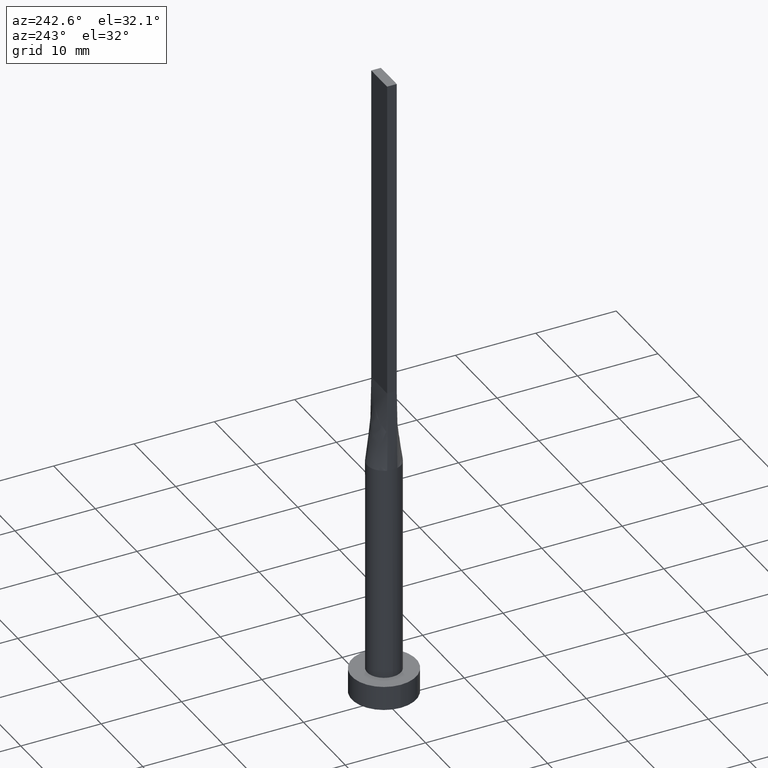
[diagram: clean part render]
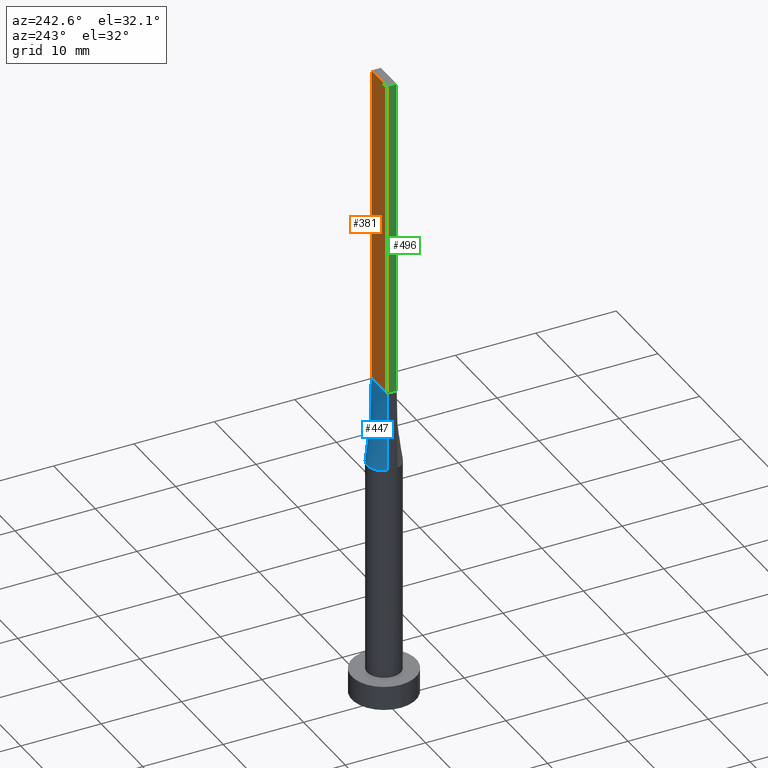
[diagram: same view with three faces highlighted in distinct colors, each labeled with its STEP entity id]
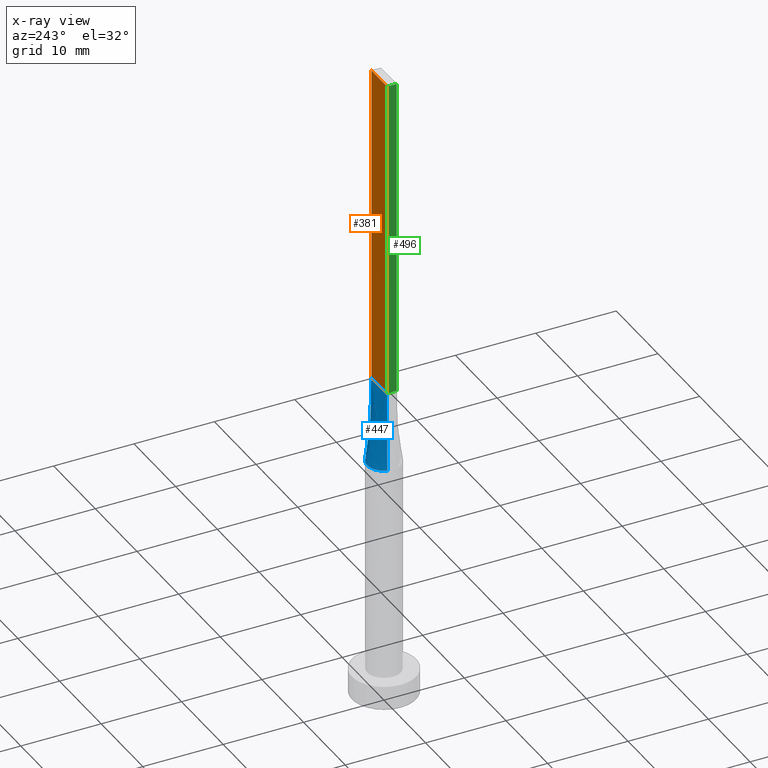
[diagram: x-ray of the same camera — body ghosted, the three highlighted faces saturated]
A machine part, auxiliary view with three faces highlighted in distinct colors.
The next image is the same camera in x-ray (body ghosted, the three faces saturated) — at least one of them is partly hidden behind the body in this view.
Their STEP definitions:

[orange] entity #381 — the highlighted planar face has unit normal (0, -1, 0).
#8 = DIRECTION ( 'NONE',  ( -1.000000000000000000, 0.000000000000000000, 0.000000000000000000 ) ) ;
#21 = EDGE_CURVE ( 'NONE', #109, #374, #120, .T. ) ;
#58 = FACE_OUTER_BOUND ( 'NONE', #136, .T. ) ;
#70 = LINE ( 'NONE', #250, #444 ) ;
#71 = VECTOR ( 'NONE', #544, 1000.000000000000000 ) ;
#86 = CARTESIAN_POINT ( 'NONE',  ( -1.899999999999999689, 0.6000000000000001998, 80.00000000000000000 ) ) ;
#102 = CARTESIAN_POINT ( 'NONE',  ( 1.899999999999999689, 0.6000000000000001998, 40.00000000000000000 ) ) ;
#108 = VECTOR ( 'NONE', #8, 1000.000000000000000 ) ;
#109 = VERTEX_POINT ( 'NONE', #448 ) ;
#120 = LINE ( 'NONE', #485, #299 ) ;
#136 = EDGE_LOOP ( 'NONE', ( #527, #354, #368, #442 ) ) ;
#171 = EDGE_CURVE ( 'NONE', #374, #328, #70, .T. ) ;
#179 = AXIS2_PLACEMENT_3D ( 'NONE', #240, #339, #189 ) ;
#189 = DIRECTION ( 'NONE',  ( 0.000000000000000000, -0.000000000000000000, -1.000000000000000000 ) ) ;
#221 = LINE ( 'NONE', #86, #71 ) ;
#231 = LINE ( 'NONE', #484, #108 ) ;
#240 = CARTESIAN_POINT ( 'NONE',  ( 1.899999999999999689, 0.6000000000000001998, 80.00000000000000000 ) ) ;
#250 = CARTESIAN_POINT ( 'NONE',  ( -1.899999999999999689, 0.6000000000000001998, 40.00000000000000000 ) ) ;
#258 = CARTESIAN_POINT ( 'NONE',  ( -1.899999999999999689, 0.6000000000000001998, 80.00000000000000000 ) ) ;
#284 = EDGE_CURVE ( 'NONE', #445, #328, #221, .T. ) ;
#299 = VECTOR ( 'NONE', #307, 1000.000000000000000 ) ;
#307 = DIRECTION ( 'NONE',  ( -0.000000000000000000, -0.000000000000000000, -1.000000000000000000 ) ) ;
#328 = VERTEX_POINT ( 'NONE', #395 ) ;
#339 = DIRECTION ( 'NONE',  ( 0.000000000000000000, -1.000000000000000000, 0.000000000000000000 ) ) ;
#345 = EDGE_CURVE ( 'NONE', #109, #445, #231, .T. ) ;
#354 = ORIENTED_EDGE ( 'NONE', *, *, #284, .F. ) ;
#368 = ORIENTED_EDGE ( 'NONE', *, *, #345, .F. ) ;
#374 = VERTEX_POINT ( 'NONE', #102 ) ;
#381 = ADVANCED_FACE ( 'NONE', ( #58 ), #407, .F. ) ;
#395 = CARTESIAN_POINT ( 'NONE',  ( -1.899999999999999689, 0.6000000000000001998, 40.00000000000000000 ) ) ;
#407 = PLANE ( 'NONE',  #179 ) ;
#418 = DIRECTION ( 'NONE',  ( -1.000000000000000000, -0.000000000000000000, -0.000000000000000000 ) ) ;
#442 = ORIENTED_EDGE ( 'NONE', *, *, #21, .T. ) ;
#444 = VECTOR ( 'NONE', #418, 1000.000000000000000 ) ;
#445 = VERTEX_POINT ( 'NONE', #258 ) ;
#448 = CARTESIAN_POINT ( 'NONE',  ( 1.899999999999999689, 0.6000000000000001998, 80.00000000000000000 ) ) ;
#484 = CARTESIAN_POINT ( 'NONE',  ( 1.899999999999999689, 0.6000000000000001998, 80.00000000000000000 ) ) ;
#485 = CARTESIAN_POINT ( 'NONE',  ( 1.899999999999999689, 0.6000000000000001998, 80.00000000000000000 ) ) ;
#527 = ORIENTED_EDGE ( 'NONE', *, *, #171, .T. ) ;
#544 = DIRECTION ( 'NONE',  ( -0.000000000000000000, -0.000000000000000000, -1.000000000000000000 ) ) ;

[blue] entity #447 — the highlighted face is a freeform B-spline surface patch.
#1 = CARTESIAN_POINT ( 'NONE',  ( 1.951261798390848901, 0.6161879363339524129, 35.00000000000000000 ) ) ;
#2 = CARTESIAN_POINT ( 'NONE',  ( -1.741666666666666696, 0.6000000000000000888, 39.99999999999999289 ) ) ;
#19 = ORIENTED_EDGE ( 'NONE', *, *, #204, .T. ) ;
#22 = CARTESIAN_POINT ( 'NONE',  ( -0.1583333333333350745, 0.6000000000000000888, 39.99999999999999289 ) ) ;
#25 = CARTESIAN_POINT ( 'NONE',  ( -1.667357759214464830, 1.291791096182927534, 30.00000000000000355 ) ) ;
#29 = CARTESIAN_POINT ( 'NONE',  ( 0.9765948449220478444, 1.875594675604967065, 29.99999999999999645 ) ) ;
#31 = CARTESIAN_POINT ( 'NONE',  ( 1.108333333333332504, 0.6000000000000000888, 39.99999999999999289 ) ) ;
#35 = CARTESIAN_POINT ( 'NONE',  ( 1.266666666666665941, 0.6000000000000000888, 39.99999999999999289 ) ) ;
#63 = CARTESIAN_POINT ( 'NONE',  ( -1.951261798390848901, 0.6161879363339521909, 35.00000000000000000 ) ) ;
#70 = LINE ( 'NONE', #250, #444 ) ;
#74 = CARTESIAN_POINT ( 'NONE',  ( -1.529462611013499451, 1.456669187245239527, 29.99999999999999645 ) ) ;
#77 = CARTESIAN_POINT ( 'NONE',  ( 1.529462611013499451, 1.456669187245239527, 29.99999999999999645 ) ) ;
#78 = CARTESIAN_POINT ( 'NONE',  ( -2.002622288503867587, 0.6324075186587619912, 30.00000000000000000 ) ) ;
#92 = ORIENTED_EDGE ( 'NONE', *, *, #171, .F. ) ;
#93 = CARTESIAN_POINT ( 'NONE',  ( -2.002523596781697890, 0.6323758726679044040, 30.00000000000000000 ) ) ;
#94 = CARTESIAN_POINT ( 'NONE',  ( -0.5124799074986362557, 2.051574327850739454, 30.00000000000000711 ) ) ;
#101 = EDGE_CURVE ( 'NONE', #491, #374, #498, .T. ) ;
#102 = CARTESIAN_POINT ( 'NONE',  ( 1.899999999999999689, 0.6000000000000001998, 40.00000000000000000 ) ) ;
#114 = CARTESIAN_POINT ( 'NONE',  ( 1.952271707612931895, 0.7915068550356627597, 30.00000000000000355 ) ) ;
#115 = CARTESIAN_POINT ( 'NONE',  ( 1.899999999999999689, 0.6000000000000001998, 40.00000000000000000 ) ) ;
#129 = CARTESIAN_POINT ( 'NONE',  ( 1.184262492297964098, 1.748903470433445628, 29.99999999999999289 ) ) ;
#134 = CARTESIAN_POINT ( 'NONE',  ( -1.184262492297963876, 1.748903470433446294, 30.00000000000000000 ) ) ;
#145 = LINE ( 'NONE', #63, #249 ) ;
#157 = CARTESIAN_POINT ( 'NONE',  ( -1.878511276496549032, 0.9591670956957809580, 30.00000000000001066 ) ) ;
#158 = CARTESIAN_POINT ( 'NONE',  ( 1.667357759214464608, 1.291791096182927090, 30.00000000000001066 ) ) ;
#163 = CARTESIAN_POINT ( 'NONE',  ( 0.6333333333333320825, 0.6000000000000000888, 39.99999999999999289 ) ) ;
#168 = FACE_OUTER_BOUND ( 'NONE', #363, .T. ) ;
#171 = EDGE_CURVE ( 'NONE', #374, #328, #70, .T. ) ;
#201 = CARTESIAN_POINT ( 'NONE',  ( -0.5124799074986362557, 2.051574327850739454, 30.00000000000000711 ) ) ;
#204 = EDGE_CURVE ( 'NONE', #214, #328, #145, .T. ) ;
#205 = CARTESIAN_POINT ( 'NONE',  ( -1.266666666666667496, 0.6000000000000000888, 39.99999999999999289 ) ) ;
#214 = VERTEX_POINT ( 'NONE', #78 ) ;
#234 = CARTESIAN_POINT ( 'NONE',  ( 0.9765948449220478444, 1.875594675604967065, 29.99999999999999645 ) ) ;
#249 = VECTOR ( 'NONE', #414, 1000.000000000000114 ) ;
#250 = CARTESIAN_POINT ( 'NONE',  ( -1.899999999999999689, 0.6000000000000001998, 40.00000000000000000 ) ) ;
#253 = CARTESIAN_POINT ( 'NONE',  ( 0.7916666666666655194, 0.6000000000000000888, 39.99999999999999289 ) ) ;
#254 = CARTESIAN_POINT ( 'NONE',  ( 1.952271707612931895, 0.7915068550356627597, 30.00000000000000355 ) ) ;
#257 = EDGE_CURVE ( 'NONE', #491, #214, #462, .T. ) ;
#259 = VECTOR ( 'NONE', #325, 1000.000000000000114 ) ;
#266 = CARTESIAN_POINT ( 'NONE',  ( -1.667357759214464830, 1.291791096182927534, 30.00000000000000355 ) ) ;
#298 = CARTESIAN_POINT ( 'NONE',  ( -1.184262492297963876, 1.748903470433446294, 30.00000000000000000 ) ) ;
#300 = CARTESIAN_POINT ( 'NONE',  ( 2.002598039528881380, 0.6323997261616642884, 30.00000000000000000 ) ) ;
#301 = CARTESIAN_POINT ( 'NONE',  ( 1.667357759214464608, 1.291791096182927090, 30.00000000000001066 ) ) ;
#309 = CARTESIAN_POINT ( 'NONE',  ( 0.2565105576742081062, 2.100000000000000533, 30.00000000000001421 ) ) ;
#318 = CARTESIAN_POINT ( 'NONE',  ( -1.952271707612931895, 0.7915068550356629817, 30.00000000000000355 ) ) ;
#325 = DIRECTION ( 'NONE',  ( -0.01025176717979708711, -0.003237400162041179606, 0.9999422085850171449 ) ) ;
#328 = VERTEX_POINT ( 'NONE', #395 ) ;
#343 = CARTESIAN_POINT ( 'NONE',  ( -0.9765948449220482885, 1.875594675604967509, 30.00000000000001066 ) ) ;
#349 = CARTESIAN_POINT ( 'NONE',  ( 1.184262492297964098, 1.748903470433445628, 29.99999999999999289 ) ) ;
#352 = CARTESIAN_POINT ( 'NONE',  ( -1.583333333333333703, 0.6000000000000000888, 39.99999999999999289 ) ) ;
#353 = CARTESIAN_POINT ( 'NONE',  ( -2.002622288503867587, 0.6324075186587619912, 30.00000000000000000 ) ) ;
#360 = CARTESIAN_POINT ( 'NONE',  ( 0.5124799074986362557, 2.051574327850739454, 30.00000000000001421 ) ) ;
#363 = EDGE_LOOP ( 'NONE', ( #561, #19, #92, #580 ) ) ;
#373 = CARTESIAN_POINT ( 'NONE',  ( 2.002598039528881380, 0.6323997261616642884, 30.00000000000000000 ) ) ;
#374 = VERTEX_POINT ( 'NONE', #102 ) ;
#378 = CARTESIAN_POINT ( 'NONE',  ( -0.3166666666666682062, 0.6000000000000000888, 39.99999999999999289 ) ) ;
#382 = CARTESIAN_POINT ( 'NONE',  ( 0.3166666666666652086, 0.6000000000000000888, 39.99999999999999289 ) ) ;
#395 = CARTESIAN_POINT ( 'NONE',  ( -1.899999999999999689, 0.6000000000000001998, 40.00000000000000000 ) ) ;
#400 = CARTESIAN_POINT ( 'NONE',  ( 1.529462611013499451, 1.456669187245239527, 29.99999999999999645 ) ) ;
#403 = CARTESIAN_POINT ( 'NONE',  ( -1.878511276496549032, 0.9591670956957809580, 30.00000000000001066 ) ) ;
#414 = DIRECTION ( 'NONE',  ( 0.01025176717979708711, -0.003237400162041147514, 0.9999422085850171449 ) ) ;
#417 = CARTESIAN_POINT ( 'NONE',  ( -0.2565105576742073845, 2.100000000000000533, 30.00000000000001066 ) ) ;
#418 = DIRECTION ( 'NONE',  ( -1.000000000000000000, -0.000000000000000000, -0.000000000000000000 ) ) ;
#419 = CARTESIAN_POINT ( 'NONE',  ( -1.108333333333334281, 0.6000000000000000888, 39.99999999999999289 ) ) ;
#424 = CARTESIAN_POINT ( 'NONE',  ( 1.583333333333332815, 0.6000000000000001998, 40.00000000000000000 ) ) ;
#434 = CARTESIAN_POINT ( 'NONE',  ( 0.2565105576742081062, 2.100000000000000533, 30.00000000000001421 ) ) ;
#441 = CARTESIAN_POINT ( 'NONE',  ( -0.2565105576742073845, 2.100000000000000533, 30.00000000000001066 ) ) ;
#444 = VECTOR ( 'NONE', #418, 1000.000000000000000 ) ;
#447 = ADVANCED_FACE ( 'NONE', ( #168 ), #476, .T. ) ;
#462 = B_SPLINE_CURVE_WITH_KNOTS ( 'NONE', 3,
 ( #300, #254, #563, #158, #400, #129, #234, #360, #434, #441, #94, #497, #134, #542, #266, #403, #539, #353 ),
 .UNSPECIFIED., .F., .F.,
 ( 4, 2, 2, 2, 2, 2, 2, 2, 4 ),
 ( 0.000000000000000000, 0.1249999999999999167, 0.2499999999999998890, 0.3749999999999998335, 0.4999999999999998890, 0.6249999999999998890, 0.7499999999999998890, 0.8750000000000000000, 1.000000000000000000 ),
 .UNSPECIFIED. ) ;
#468 = CARTESIAN_POINT ( 'NONE',  ( -0.7916666666666677399, 0.6000000000000000888, 39.99999999999999289 ) ) ;
#476 = B_SPLINE_SURFACE_WITH_KNOTS ( 'NONE', 3, 1, ( 
 ( #525, #115 ),
 ( #114, #531 ),
 ( #521, #424 ),
 ( #301, #35 ),
 ( #77, #31 ),
 ( #349, #253 ),
 ( #29, #163 ),
 ( #571, #382 ),
 ( #309, #482 ),
 ( #417, #22 ),
 ( #201, #378 ),
 ( #343, #517 ),
 ( #298, #468 ),
 ( #74, #419 ),
 ( #25, #205 ),
 ( #157, #352 ),
 ( #318, #2 ),
 ( #93, #489 ) ),
 .UNSPECIFIED., .F., .F., .F.,
 ( 4, 2, 2, 2, 2, 2, 2, 2, 4 ),
 ( 2, 2 ),
 ( 0.000000000000000000, 0.1249999999999999167, 0.2499999999999998890, 0.3749999999999998335, 0.4999999999999998890, 0.6249999999999998890, 0.7499999999999998890, 0.8750000000000000000, 1.000000000000000000 ),
 ( 0.000000000000000000, 1.000000000000000000 ),
 .UNSPECIFIED. ) ;
#482 = CARTESIAN_POINT ( 'NONE',  ( 0.1583333333333316328, 0.6000000000000000888, 39.99999999999999289 ) ) ;
#489 = CARTESIAN_POINT ( 'NONE',  ( -1.899999999999999689, 0.6000000000000001998, 40.00000000000000000 ) ) ;
#491 = VERTEX_POINT ( 'NONE', #373 ) ;
#497 = CARTESIAN_POINT ( 'NONE',  ( -0.9765948449220482885, 1.875594675604967509, 30.00000000000001066 ) ) ;
#498 = LINE ( 'NONE', #1, #259 ) ;
#517 = CARTESIAN_POINT ( 'NONE',  ( -0.6333333333333345250, 0.6000000000000000888, 39.99999999999999289 ) ) ;
#521 = CARTESIAN_POINT ( 'NONE',  ( 1.878511276496548366, 0.9591670956957804028, 30.00000000000001066 ) ) ;
#525 = CARTESIAN_POINT ( 'NONE',  ( 2.002523596781697890, 0.6323758726679044040, 30.00000000000000000 ) ) ;
#531 = CARTESIAN_POINT ( 'NONE',  ( 1.741666666666666252, 0.6000000000000001998, 40.00000000000000000 ) ) ;
#539 = CARTESIAN_POINT ( 'NONE',  ( -1.952271707612931895, 0.7915068550356629817, 30.00000000000000355 ) ) ;
#542 = CARTESIAN_POINT ( 'NONE',  ( -1.529462611013499451, 1.456669187245239527, 29.99999999999999645 ) ) ;
#561 = ORIENTED_EDGE ( 'NONE', *, *, #257, .T. ) ;
#563 = CARTESIAN_POINT ( 'NONE',  ( 1.878511276496548366, 0.9591670956957804028, 30.00000000000001066 ) ) ;
#571 = CARTESIAN_POINT ( 'NONE',  ( 0.5124799074986362557, 2.051574327850739454, 30.00000000000001421 ) ) ;
#580 = ORIENTED_EDGE ( 'NONE', *, *, #101, .F. ) ;

[green] entity #496 — the highlighted planar face has unit normal (1, -0, 0).
#12 = CARTESIAN_POINT ( 'NONE',  ( -1.899999999999999911, -0.5999999999999995337, 80.00000000000000000 ) ) ;
#14 = FACE_OUTER_BOUND ( 'NONE', #278, .T. ) ;
#18 = DIRECTION ( 'NONE',  ( 1.807003620809174632E-16, 1.000000000000000000, 0.000000000000000000 ) ) ;
#57 = DIRECTION ( 'NONE',  ( -1.807003620809174632E-16, -1.000000000000000000, 0.000000000000000000 ) ) ;
#71 = VECTOR ( 'NONE', #544, 1000.000000000000000 ) ;
#86 = CARTESIAN_POINT ( 'NONE',  ( -1.899999999999999689, 0.6000000000000001998, 80.00000000000000000 ) ) ;
#100 = CARTESIAN_POINT ( 'NONE',  ( -1.899999999999999689, 0.6000000000000001998, 80.00000000000000000 ) ) ;
#137 = CARTESIAN_POINT ( 'NONE',  ( -1.899999999999999689, 0.6000000000000001998, 80.00000000000000000 ) ) ;
#142 = CARTESIAN_POINT ( 'NONE',  ( -1.899999999999999689, 0.6000000000000001998, 40.00000000000000000 ) ) ;
#151 = DIRECTION ( 'NONE',  ( -1.807003620809174632E-16, -1.000000000000000000, 0.000000000000000000 ) ) ;
#183 = LINE ( 'NONE', #137, #549 ) ;
#192 = DIRECTION ( 'NONE',  ( 1.000000000000000000, -1.807003620809174632E-16, 0.000000000000000000 ) ) ;
#198 = VERTEX_POINT ( 'NONE', #372 ) ;
#221 = LINE ( 'NONE', #86, #71 ) ;
#258 = CARTESIAN_POINT ( 'NONE',  ( -1.899999999999999689, 0.6000000000000001998, 80.00000000000000000 ) ) ;
#278 = EDGE_LOOP ( 'NONE', ( #388, #415, #543, #333 ) ) ;
#284 = EDGE_CURVE ( 'NONE', #445, #328, #221, .T. ) ;
#292 = CARTESIAN_POINT ( 'NONE',  ( -1.899999999999999911, -0.5999999999999995337, 80.00000000000000000 ) ) ;
#308 = VECTOR ( 'NONE', #57, 1000.000000000000000 ) ;
#328 = VERTEX_POINT ( 'NONE', #395 ) ;
#331 = LINE ( 'NONE', #292, #425 ) ;
#333 = ORIENTED_EDGE ( 'NONE', *, *, #284, .T. ) ;
#334 = PLANE ( 'NONE',  #479 ) ;
#351 = EDGE_CURVE ( 'NONE', #445, #394, #183, .T. ) ;
#359 = EDGE_CURVE ( 'NONE', #394, #198, #331, .T. ) ;
#372 = CARTESIAN_POINT ( 'NONE',  ( -1.899999999999999911, -0.5999999999999995337, 40.00000000000000000 ) ) ;
#388 = ORIENTED_EDGE ( 'NONE', *, *, #552, .T. ) ;
#394 = VERTEX_POINT ( 'NONE', #12 ) ;
#395 = CARTESIAN_POINT ( 'NONE',  ( -1.899999999999999689, 0.6000000000000001998, 40.00000000000000000 ) ) ;
#415 = ORIENTED_EDGE ( 'NONE', *, *, #359, .F. ) ;
#425 = VECTOR ( 'NONE', #451, 1000.000000000000000 ) ;
#445 = VERTEX_POINT ( 'NONE', #258 ) ;
#451 = DIRECTION ( 'NONE',  ( -0.000000000000000000, -0.000000000000000000, -1.000000000000000000 ) ) ;
#479 = AXIS2_PLACEMENT_3D ( 'NONE', #100, #192, #18 ) ;
#496 = ADVANCED_FACE ( 'NONE', ( #14 ), #334, .F. ) ;
#503 = LINE ( 'NONE', #142, #308 ) ;
#543 = ORIENTED_EDGE ( 'NONE', *, *, #351, .F. ) ;
#544 = DIRECTION ( 'NONE',  ( -0.000000000000000000, -0.000000000000000000, -1.000000000000000000 ) ) ;
#549 = VECTOR ( 'NONE', #151, 1000.000000000000000 ) ;
#552 = EDGE_CURVE ( 'NONE', #328, #198, #503, .T. ) ;